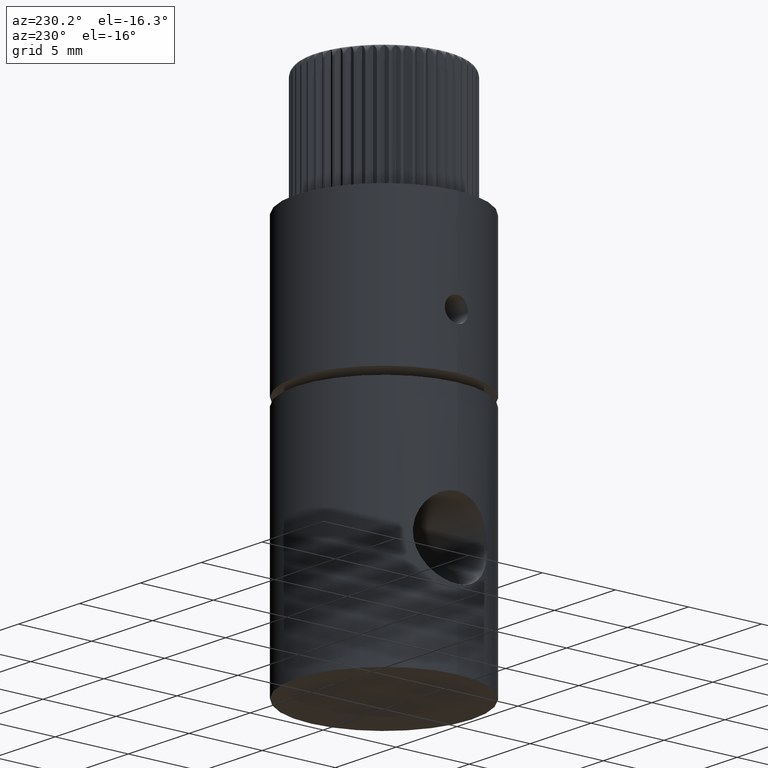
[diagram: clean part render]
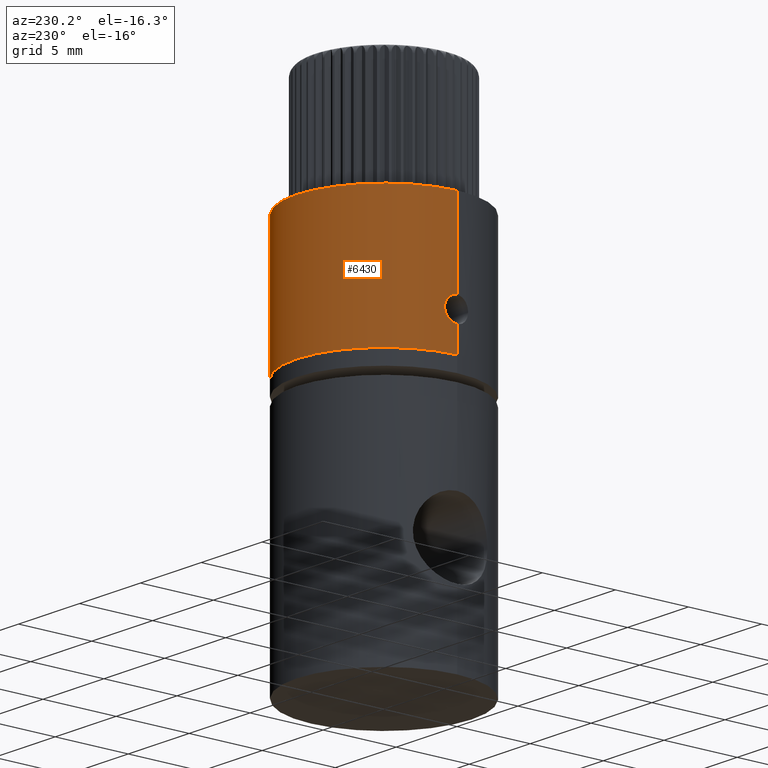
[diagram: same view with one face highlighted and labeled with its STEP entity id]
A machine part, auxiliary view. The second image highlights one B-rep face of the part: STEP entity #6430.
In plain terms, the highlighted cylindrical surface (partial cylindrical patch) has radius 6 mm, axis along (0, 0, 1).
Its self-contained STEP definition (entity closure, byte-faithful):
#457 = EDGE_CURVE ( 'NONE', #2749, #10056, #6471, .T. ) ;
#608 = CARTESIAN_POINT ( 'NONE',  ( -5.949317765969823300, 0.7792622765200606400, 20.20912928666823700 ) ) ;
#631 = DIRECTION ( 'NONE',  ( 0.0000000000000000000, 0.0000000000000000000, 1.000000000000000000 ) ) ;
#651 = CARTESIAN_POINT ( 'NONE',  ( -5.959339633922778200, 0.6985097916183805600, 19.59616198446643400 ) ) ;
#691 = CIRCLE ( 'NONE', #1210, 6.000000000000008000 ) ;
#1210 = AXIS2_PLACEMENT_3D ( 'NONE', #9849, #6518, #3925 ) ;
#1861 = CIRCLE ( 'NONE', #2217, 6.000000000000007100 ) ;
#1887 = VERTEX_POINT ( 'NONE', #10492 ) ;
#1929 = EDGE_CURVE ( 'NONE', #3718, #1887, #691, .T. ) ;
#1961 = DIRECTION ( 'NONE',  ( 0.0000000000000000000, 0.0000000000000000000, 1.000000000000000000 ) ) ;
#2154 = DIRECTION ( 'NONE',  ( 0.0000000000000000000, 0.0000000000000000000, 1.000000000000000000 ) ) ;
#2217 = AXIS2_PLACEMENT_3D ( 'NONE', #7136, #1961, #9683 ) ;
#2366 = CARTESIAN_POINT ( 'NONE',  ( -5.966258610877497800, 0.6397103486658366500, 20.49155919898408800 ) ) ;
#2511 = CYLINDRICAL_SURFACE ( 'NONE', #10874, 6.000000000000008000 ) ;
#2569 = DIRECTION ( 'NONE',  ( 0.0000000000000000000, 0.0000000000000000000, 1.000000000000000000 ) ) ;
#2589 = DIRECTION ( 'NONE',  ( 1.000000000000000000, 0.0000000000000000000, 0.0000000000000000000 ) ) ;
#2616 = VECTOR ( 'NONE', #2154, 1000.000000000000000 ) ;
#2749 = VERTEX_POINT ( 'NONE', #10077 ) ;
#2780 = LINE ( 'NONE', #3376, #10267 ) ;
#2812 = ORIENTED_EDGE ( 'NONE', *, *, #8110, .F. ) ;
#3312 = ORIENTED_EDGE ( 'NONE', *, *, #1929, .T. ) ;
#3376 = CARTESIAN_POINT ( 'NONE',  ( -6.000000000000008000, 7.347880794884129600E-016, 24.58322956960368100 ) ) ;
#3669 = EDGE_CURVE ( 'NONE', #8235, #10056, #1861, .T. ) ;
#3718 = VERTEX_POINT ( 'NONE', #5298 ) ;
#3925 = DIRECTION ( 'NONE',  ( 1.000000000000000000, 0.0000000000000000000, 0.0000000000000000000 ) ) ;
#4012 = CARTESIAN_POINT ( 'NONE',  ( -5.987275666615490300, 0.4177359081895016300, 19.28656094538665800 ) ) ;
#4077 = CARTESIAN_POINT ( 'NONE',  ( -5.987194023495652200, 0.4187986309171033400, 20.71277402584968300 ) ) ;
#4920 = LINE ( 'NONE', #6337, #2616 ) ;
#5024 = CARTESIAN_POINT ( 'NONE',  ( -6.000000000000056800, 0.2089156869033904400, 19.19999999999956600 ) ) ;
#5298 = CARTESIAN_POINT ( 'NONE',  ( 6.000000000000008000, 0.0000000000000000000, 17.49999999999999600 ) ) ;
#5501 = EDGE_LOOP ( 'NONE', ( #3312, #7520, #10952, #9273, #10789, #2812 ) ) ;
#5558 = CARTESIAN_POINT ( 'NONE',  ( 6.000000000000007100, 0.0000000000000000000, 26.49999999999999600 ) ) ;
#5614 = CARTESIAN_POINT ( 'NONE',  ( -6.000000000001271900, -1.117421425766737000E-012, 19.19999999999045700 ) ) ;
#5752 = CARTESIAN_POINT ( 'NONE',  ( -5.949352582208583800, 0.7790049126916324100, 19.78987523282787100 ) ) ;
#6075 = EDGE_CURVE ( 'NONE', #1887, #7724, #2780, .T. ) ;
#6337 = CARTESIAN_POINT ( 'NONE',  ( 6.000000000000008000, 0.0000000000000000000, 24.58322956960368100 ) ) ;
#6430 = ADVANCED_FACE ( 'NONE', ( #10395 ), #2511, .T. ) ;
#6471 = LINE ( 'NONE', #7980, #10869 ) ;
#6518 = DIRECTION ( 'NONE',  ( 0.0000000000000000000, 0.0000000000000000000, 1.000000000000000000 ) ) ;
#6607 = CARTESIAN_POINT ( 'NONE',  ( -5.959270238225954600, 0.6990921283248526800, 20.40280882595074600 ) ) ;
#6681 = CARTESIAN_POINT ( 'NONE',  ( -5.946437427898596100, 0.7999261975976548200, 19.89367016118140100 ) ) ;
#6700 = CARTESIAN_POINT ( 'NONE',  ( 0.0000000000000000000, 0.0000000000000000000, 24.58322956960368100 ) ) ;
#7136 = CARTESIAN_POINT ( 'NONE',  ( 0.0000000000000000000, 0.0000000000000000000, 26.49999999999999600 ) ) ;
#7520 = ORIENTED_EDGE ( 'NONE', *, *, #6075, .T. ) ;
#7724 = VERTEX_POINT ( 'NONE', #5614 ) ;
#7980 = CARTESIAN_POINT ( 'NONE',  ( -6.000000000000008000, 7.347880794884129600E-016, 24.58322956960368100 ) ) ;
#8110 = EDGE_CURVE ( 'NONE', #3718, #8235, #4920, .T. ) ;
#8235 = VERTEX_POINT ( 'NONE', #5558 ) ;
#8795 = DIRECTION ( 'NONE',  ( 0.0000000000000000000, 0.0000000000000000000, 1.000000000000000000 ) ) ;
#9183 = CARTESIAN_POINT ( 'NONE',  ( -5.946417622079424700, 0.8000734149686336000, 20.10521638126573800 ) ) ;
#9273 = ORIENTED_EDGE ( 'NONE', *, *, #457, .T. ) ;
#9624 = EDGE_CURVE ( 'NONE', #7724, #2749, #9926, .T. ) ;
#9683 = DIRECTION ( 'NONE',  ( 1.000000000000000000, 0.0000000000000000000, 0.0000000000000000000 ) ) ;
#9849 = CARTESIAN_POINT ( 'NONE',  ( 0.0000000000000000000, 0.0000000000000000000, 17.49999999999999600 ) ) ;
#9907 = CARTESIAN_POINT ( 'NONE',  ( -5.999999999999999100, 7.347880794884120700E-016, 26.49999999999999600 ) ) ;
#9926 = B_SPLINE_CURVE_WITH_KNOTS ( 'NONE', 3,
 ( #10887, #5024, #4012, #9972, #651, #5752, #6681, #9183, #608, #6607, #2366, #4077, #10052, #10916 ),
 .UNSPECIFIED., .F., .F.,
 ( 4, 2, 2, 2, 2, 2, 4 ),
 ( 0.002503952235407972000, 0.003129789261120524100, 0.003442707773976803400, 0.003755626286833083100, 0.004068544799689362800, 0.004381463312545641600, 0.005007300338258193300 ),
 .UNSPECIFIED. ) ;
#9972 = CARTESIAN_POINT ( 'NONE',  ( -5.966326180707542700, 0.6390971793576961700, 19.50762875922054800 ) ) ;
#10052 = CARTESIAN_POINT ( 'NONE',  ( -6.000000000000010700, 0.2116340261611343000, 20.79999999999999700 ) ) ;
#10056 = VERTEX_POINT ( 'NONE', #9907 ) ;
#10077 = CARTESIAN_POINT ( 'NONE',  ( -6.000000000000010700, 5.969670168252636100E-017, 20.79999999999999700 ) ) ;
#10267 = VECTOR ( 'NONE', #2569, 1000.000000000000000 ) ;
#10395 = FACE_OUTER_BOUND ( 'NONE', #5501, .T. ) ;
#10492 = CARTESIAN_POINT ( 'NONE',  ( -6.000000000000000000, 7.347880794884120700E-016, 17.49999999999999600 ) ) ;
#10789 = ORIENTED_EDGE ( 'NONE', *, *, #3669, .F. ) ;
#10869 = VECTOR ( 'NONE', #8795, 1000.000000000000000 ) ;
#10874 = AXIS2_PLACEMENT_3D ( 'NONE', #6700, #631, #2589 ) ;
#10887 = CARTESIAN_POINT ( 'NONE',  ( -6.000000000001271900, -1.117421425766737000E-012, 19.19999999999045700 ) ) ;
#10916 = CARTESIAN_POINT ( 'NONE',  ( -6.000000000000010700, 5.969670168252636100E-017, 20.79999999999999700 ) ) ;
#10952 = ORIENTED_EDGE ( 'NONE', *, *, #9624, .T. ) ;